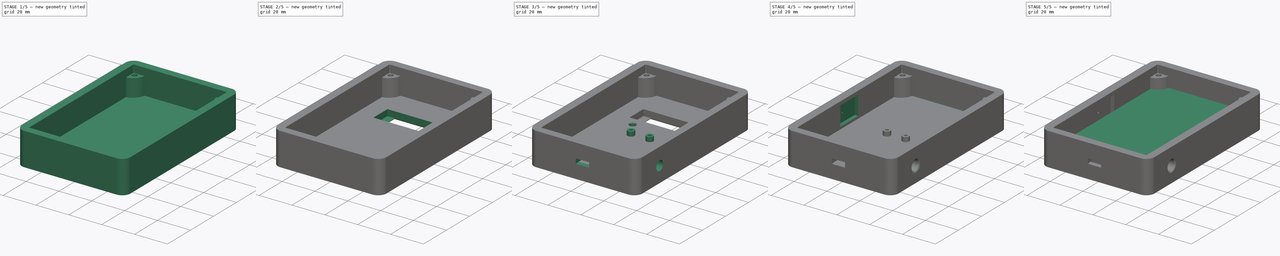
[diagram: build sequence overview — one tinted view per stage of 5, left to right]
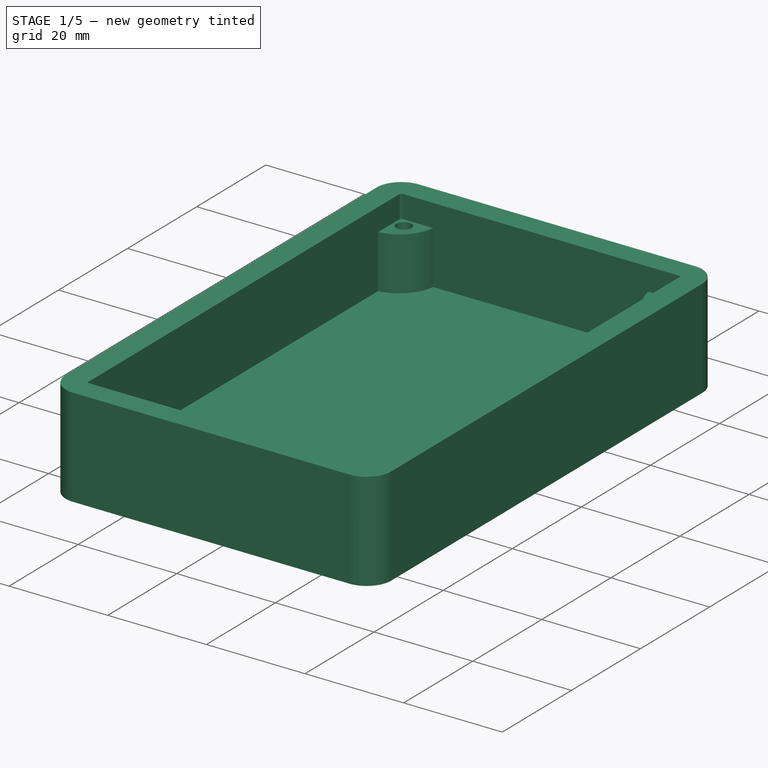
[diagram: stage 1 of 5 — iso view after this stage's code; geometry added in this stage tinted green]
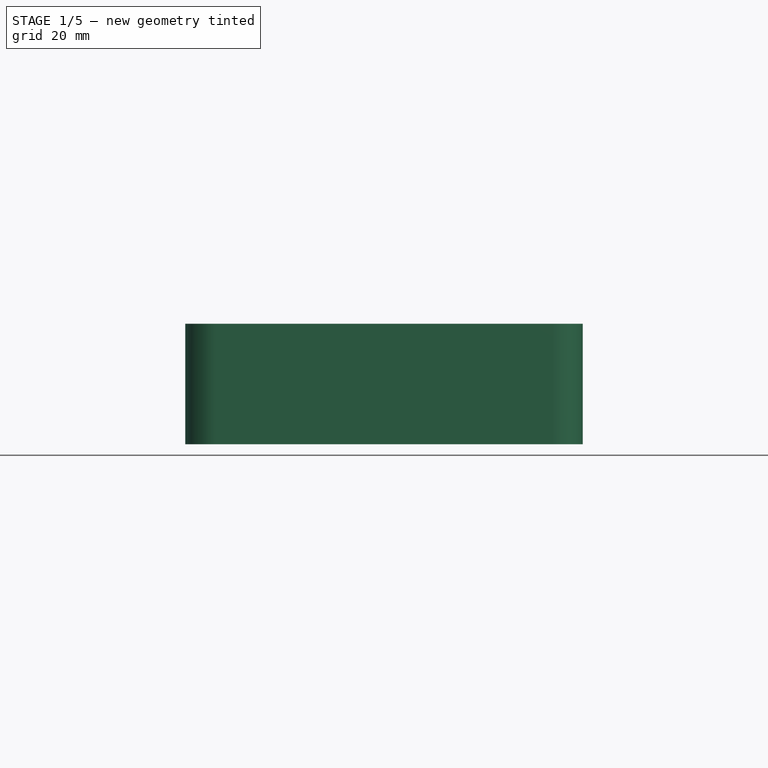
[diagram: stage 1 of 5 — front view after this stage's code; geometry added in this stage tinted green]
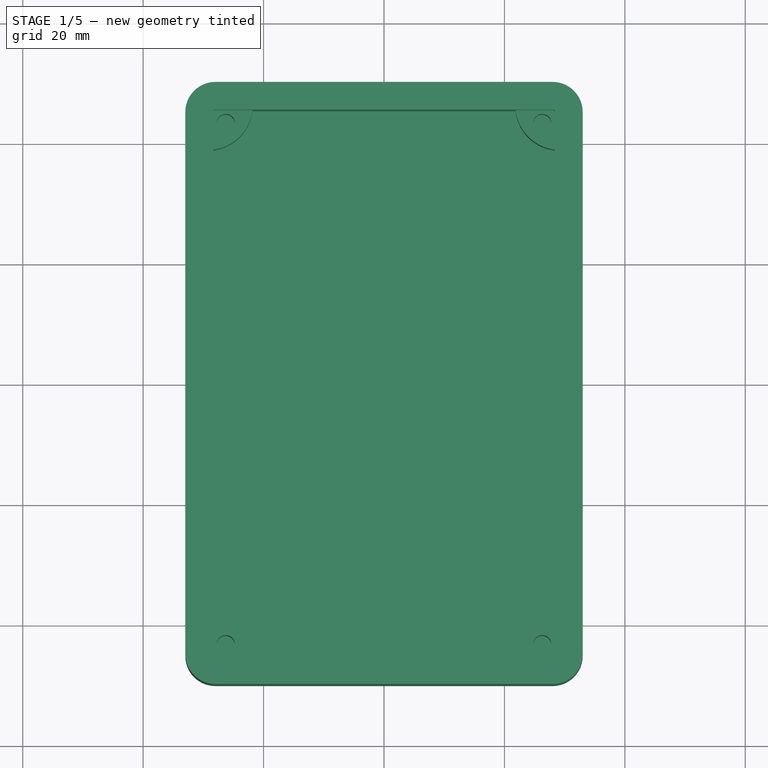
[diagram: stage 1 of 5 — top view after this stage's code; geometry added in this stage tinted green]
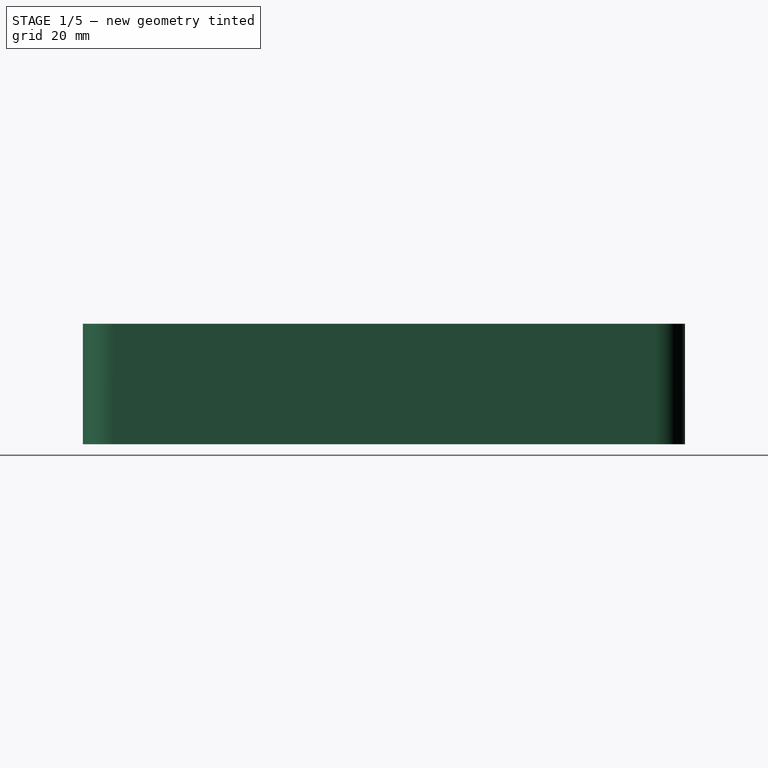
[diagram: stage 1 of 5 — right view after this stage's code; geometry added in this stage tinted green]
FCSTD DOCUMENT  (FreeCAD 0.21R33771 (Git))
Label: Project_Box_OLEDBOXFACE_91_PF_TempSensor
License: All rights reserved
LicenseURL: http://en.wikipedia.org/wiki/All_rights_reserved
objects: Sketcher::SketchObject×16, PartDesign::Pocket×12, PartDesign::Pad×5, PartDesign::Mirrored×4, PartDesign::MultiTransform×2, PartDesign::Chamfer×2, PartDesign::Body×2, App::Part×2, Spreadsheet::Sheet×1, Part::Part2DObjectPython×1, PartDesign::Fillet×1
note: 65 computed .brp shape members not serialized (recipe doc carries the construction recipe); baked Part::Feature solids carry a one-line shape summary decoded from their .brp

FEATURE [Sketcher::SketchObject] Sketch
  FullyConstrained = true
  MapMode = 5
  Support = -> [XY_Plane002]
  expr: Constraints[16] = <<params>>.box_y
  expr: Constraints[17] = <<params>>.radius_out
  expr: Constraints[18] = <<params>>.box_x
  sketch-geometry (8):
    g0: LineSegment StartX=-28 StartY=50 StartZ=0 EndX=28 EndY=50 EndZ=0
    g1: LineSegment StartX=33 StartY=45 StartZ=0 EndX=33 EndY=-45 EndZ=0
    g2: LineSegment StartX=28 StartY=-50 StartZ=0 EndX=-28 EndY=-50 EndZ=0
    g3: LineSegment StartX=-33 StartY=-45 StartZ=0 EndX=-33 EndY=45 EndZ=0
    g4: ArcOfCircle CenterX=-28 CenterY=45 CenterZ=0 NormalX=0 NormalY=0 NormalZ=1 AngleXU=0 Radius=5 StartAngle=1.5708 EndAngle=3.14159
    g5: ArcOfCircle CenterX=28 CenterY=45 CenterZ=0 NormalX=0 NormalY=0 NormalZ=1 AngleXU=0 Radius=5 StartAngle=0 EndAngle=1.5708
    g6: ArcOfCircle CenterX=28 CenterY=-45 CenterZ=0 NormalX=0 NormalY=0 NormalZ=1 AngleXU=0 Radius=5 StartAngle=4.71239 EndAngle=6.28319
    g7: ArcOfCircle CenterX=-28 CenterY=-45 CenterZ=0 NormalX=0 NormalY=0 NormalZ=1 AngleXU=0 Radius=5 StartAngle=3.14159 EndAngle=4.71239
  constraints (19):
    c: Horizontal(g0)
    c: Horizontal(g2)
    c: Vertical(g1)
    c: Vertical(g3)
    c: Tangent(g0,g4) = 1.5708
    c: Tangent(g3,g4) = 1.5708
    c: Tangent(g0,g5) = 1.5708
    c: Tangent(g1,g5) = 1.5708
    c: Tangent(g1,g6) = 1.5708
    c: Tangent(g2,g6) = 1.5708
    c: Tangent(g2,g7) = 1.5708
    c: Tangent(g3,g7) = 1.5708
    c: Symmetric(g4,g6,g-1)
    c: Equal(g4,g5)
    c: Equal(g5,g6)
    c: Equal(g6,g7)
    c: DistanceY(g2,g0) = 100
    c: Radius(g5) = 5
    c: DistanceX(g3,g1) = 66
FEATURE [Spreadsheet::Sheet] Spreadsheet  label="params"
  cells = A2='box_x; B2(box_x)=66; A3='box_y; B3(box_y)=100; A4='box_z; B4(box_z)=20; A5='box_wall_t; B5(box_wall_t)=4.6; A6='box_i_x; B6(box_i_x)==B2 - B5 * 2; C6='Calculated; A7='box_i_y; B7(box_i_y)==B3 - B5 * 2; C7='Calculated; A8='radius_out; B8(radius_out)=5; A9='radius_in; B9(radius_in)==B8 - B5; C9='Calculated; A10='hole_d; B10(hole_d)=3; A11='lug_z; B11(lug_z)==B4 - B5 * 2; A12='lug_r; B12(lug_r)==B10 * 2.5; A13='corner_x; B13(corner_x)==B6 / 2; A14='corner_y; B14(corner_y)==B7 / 2; A15='clearance; B15(clearance)=0.2; A16='lug_clearance; B16(lug_clearance)=1; A18='oled_x; B18(oled_x)=38; A19='oled_y; B19(oled_y)=12; A20='oled_z; B20(oled_z)=3.8; A21='oled_d_x; B21(oled_d_x)=27; A22='oled_d_y; B22(oled_d_y)=12; A23='oled_offset; B23(oled_offset)=1; A25='led_d; B25(led_d)=3; A26='led_l; B26(led_l)=4.3; A27='led_lip_d; B27(led_lip_d)=3.85; A28='led_lip_l; B28(led_lip_l)=1; A29='led_oled_clearance; B29(led_oled_clearance)=9; A31='pi_post_hole_d; B31(pi_post_hole_d)=2.1; A32='pi_post_d; B32(pi_post_d)==B31 * 2; C32='Calculated; A33='pi_post_z; B33(pi_post_z)=2.75; A34='pi_post_screw_d; B34(pi_post_screw_d)=2; A35='pi_post_x; B35(pi_post_x)=11.4; A36='pi_post_y; B36(pi_post_y)==B39 - 2; C36='Calculated; A37='pi_x; B37(pi_x)=21; A38='pi_pin_x; B38(pi_pin_x)=17.78; A39='pi_y; B39(pi_y)=51; A40='pi_z; B40(pi_z)=1; A41='pi_body_clearance; B41(pi_body_clearance)=0.2; A42='pi_usb_x; B42(pi_usb_x)=8.1; A43='pi_usb_y; B43(pi_usb_y)=3; A44='pi_usb_z; B44(pi_usb_z)=6; A45='pi_usb_lip_z; B45(pi_usb_lip_z)=1.3; A47='sense_cable_d; B47(sense_cable_d)=5; A48='sense_cable_x; B48(sense_cable_x)=20; A50='touch_x; B50(touch_x)=14.5; A51='touch_y; B51(touch_y)=10.7; A52='touch_z; B52(touch_z)=2.15; A53='touch_clearance; B53(touch_clearance)=1; A55='oled_clearance; B55(oled_clearance)=0.2; A56='led_clearance; B56(led_clearance)=0.5; A57='cable_clearance; B57(cable_clearance)=1; A58='touch_offset; B58(touch_offset)=2.5
FEATURE [PartDesign::Pad] Pad  label="Main Box"
  Direction = (0,0,1)
  Length = 20
  Length2 = 10
  Profile = -> Sketch
  ReferenceAxis = -> Sketch [N_Axis]
  Type = 0
  expr: Length = <<params>>.box_z
FEATURE [Sketcher::SketchObject] Sketch001
  FullyConstrained = true
  MapMode = 5
  Placement = pos=(0,0,20) rot=(0,0,1;0rad)
  Support = -> [Pad]
  expr: Constraints[16] = <<params>>.radius_in
  expr: Constraints[17] = <<params>>.box_i_x
  expr: Constraints[18] = <<params>>.box_i_y
  sketch-geometry (8):
    g0: LineSegment StartX=-28 StartY=45.4 StartZ=0 EndX=28 EndY=45.4 EndZ=0
    g1: LineSegment StartX=28.4 StartY=45 StartZ=0 EndX=28.4 EndY=-45 EndZ=0
    g2: LineSegment StartX=28 StartY=-45.4 StartZ=0 EndX=-28 EndY=-45.4 EndZ=0
    g3: LineSegment StartX=-28.4 StartY=-45 StartZ=0 EndX=-28.4 EndY=45 EndZ=0
    g4: ArcOfCircle CenterX=-28 CenterY=45 CenterZ=0 NormalX=0 NormalY=0 NormalZ=1 AngleXU=0 Radius=0.4 StartAngle=1.5708 EndAngle=3.14159
    g5: ArcOfCircle CenterX=28 CenterY=45 CenterZ=0 NormalX=0 NormalY=0 NormalZ=1 AngleXU=0 Radius=0.4 StartAngle=5.4e-15 EndAngle=1.5708
    g6: ArcOfCircle CenterX=28 CenterY=-45 CenterZ=0 NormalX=0 NormalY=0 NormalZ=1 AngleXU=0 Radius=0.4 StartAngle=4.71239 EndAngle=6.28319
    g7: ArcOfCircle CenterX=-28 CenterY=-45 CenterZ=0 NormalX=0 NormalY=0 NormalZ=1 AngleXU=0 Radius=0.4 StartAngle=3.14159 EndAngle=4.71239
  constraints (19):
    c: Horizontal(g0)
    c: Horizontal(g2)
    c: Vertical(g1)
    c: Vertical(g3)
    c: Tangent(g3,g4) = 1.5708
    c: Tangent(g0,g4) = 1.5708
    c: Tangent(g0,g5) = 1.5708
    c: Tangent(g1,g5) = 1.5708
    c: Tangent(g1,g6) = 1.5708
    c: Tangent(g2,g6) = 1.5708
    c: Tangent(g2,g7) = 1.5708
    c: Tangent(g3,g7) = 1.5708
    c: Symmetric(g4,g6,g-1)
    c: Equal(g4,g5)
    c: Equal(g5,g6)
    c: Equal(g6,g7)
    c: Radius(g5) = 0.4
    c: DistanceX(g3,g1) = 56.8
    c: DistanceY(g2,g0) = 90.8
FEATURE [PartDesign::Pocket] Pocket  label="Box Pocket"
  BaseFeature = -> Pad
  Direction = (0,0,-1)
  Length = 15.4
  Length2 = 5
  Profile = -> Sketch001
  ReferenceAxis = -> Sketch001 [N_Axis]
  Type = 0
  expr: Length = <<params>>.box_z - <<params>>.box_wall_t
FEATURE [PartDesign::Body] Body001  label="LidBody"
  Group = -> [Sketch003,Pad002,Sketch004,Pad003,Sketch005,Pocket001,MultiTransform001,Mirrored002,Mirrored003,Chamfer]
  Origin = -> Origin004
  Tip = -> Chamfer
FEATURE [App::Part] Part001  label="Lid"
  Group = -> [Body001]
  Origin = -> Origin003
FEATURE [PartDesign::Mirrored] Mirrored
  MirrorPlane = -> Sketch002 [V_Axis]
FEATURE [PartDesign::Mirrored] Mirrored001
  MirrorPlane = -> Sketch002 [H_Axis]
FEATURE [PartDesign::Pad] Pad001  label="Lug"
  BaseFeature = -> Pocket
  Direction = (0,0,1)
  Length = 10.8
  Length2 = 10
  Profile = -> Sketch002
  ReferenceAxis = -> Sketch002 [N_Axis]
  Type = 0
  expr: Length = <<params>>.lug_z
FEATURE [PartDesign::MultiTransform] MultiTransform
  BaseFeature = -> Pad001
  Originals = -> [Pad001]
  Transformations = -> [Mirrored,Mirrored001]
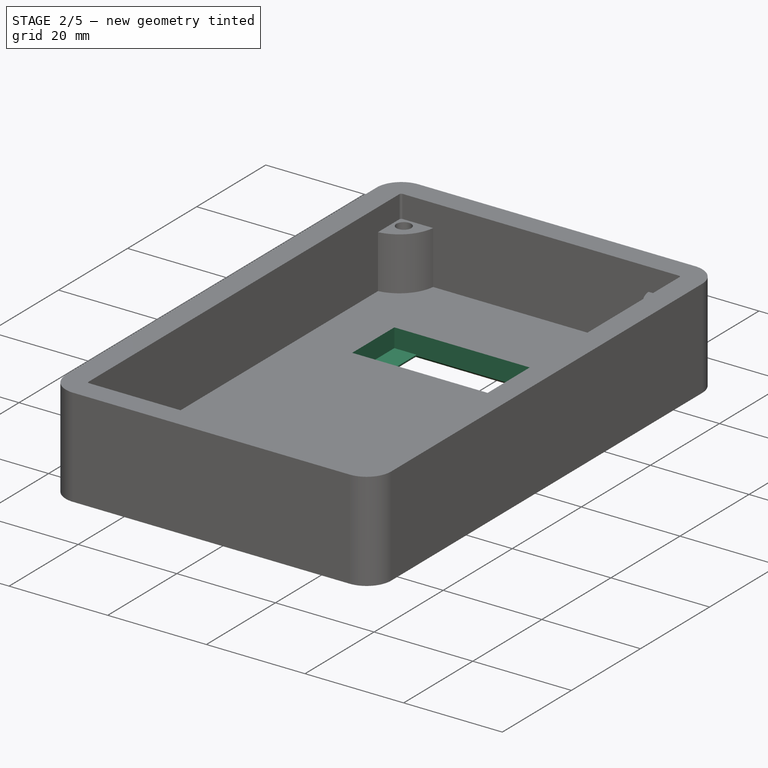
[diagram: stage 2 of 5 — iso view after this stage's code; geometry added in this stage tinted green]
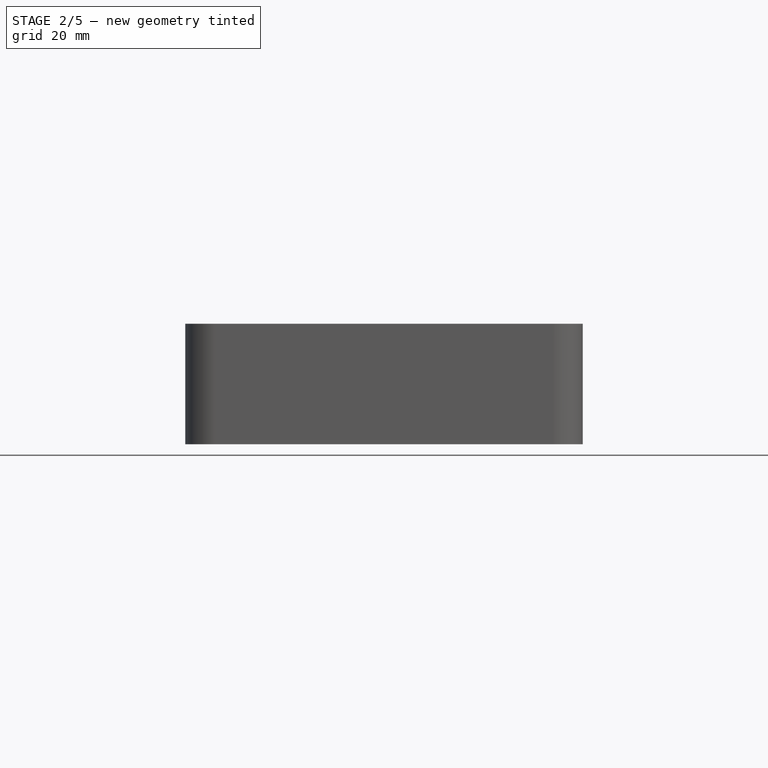
[diagram: stage 2 of 5 — front view after this stage's code; geometry added in this stage tinted green]
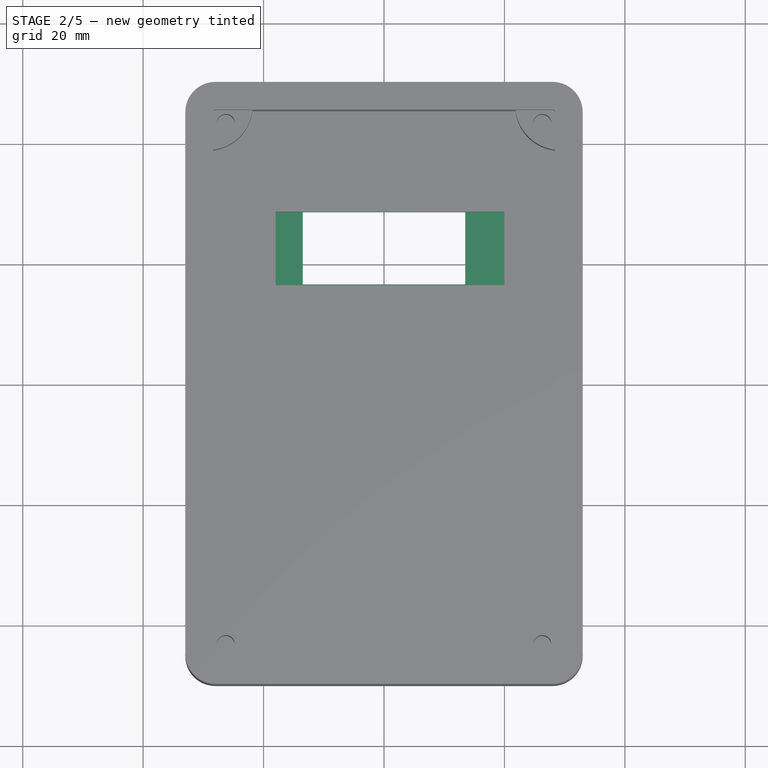
[diagram: stage 2 of 5 — top view after this stage's code; geometry added in this stage tinted green]
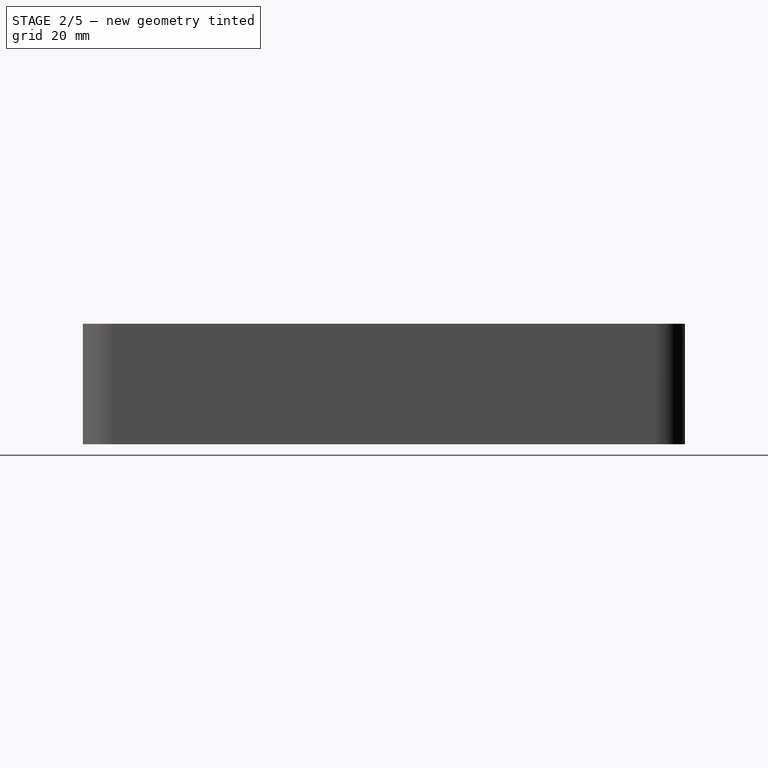
[diagram: stage 2 of 5 — right view after this stage's code; geometry added in this stage tinted green]
FEATURE [Sketcher::SketchObject] Sketch006
  FullyConstrained = true
  MapMode = 5
  Placement = pos=(0,0,4.6) rot=(0,0,1;0rad)
  Support = -> [MultiTransform]
  expr: Constraints[10] = <<params>>.box_i_y / 4 + <<params>>.oled_y / 2
  expr: Constraints[11] = <<params>>.oled_d_x / 2
  expr: Constraints[8] = <<params>>.oled_d_x
  expr: Constraints[9] = <<params>>.oled_d_y
  sketch-geometry (4):
    g0: LineSegment StartX=-13.5 StartY=28.7 StartZ=0 EndX=13.5 EndY=28.7 EndZ=0
    g1: LineSegment StartX=13.5 StartY=28.7 StartZ=0 EndX=13.5 EndY=16.7 EndZ=0
    g2: LineSegment StartX=13.5 StartY=16.7 StartZ=0 EndX=-13.5 EndY=16.7 EndZ=0
    g3: LineSegment StartX=-13.5 StartY=16.7 StartZ=0 EndX=-13.5 EndY=28.7 EndZ=0
  constraints (12):
    c: Coincident(g0,g1)
    c: Coincident(g1,g2)
    c: Coincident(g2,g3)
    c: Coincident(g3,g0)
    c: Horizontal(g0)
    c: Horizontal(g2)
    c: Vertical(g1)
    c: Vertical(g3)
    c: DistanceX(g0,g0) = 27
    c: DistanceY(g2,g0) = 12
    c: DistanceY(g-1,g0) = 28.7
    c: DistanceX(g2,g-1) = 13.5
FEATURE [PartDesign::Pocket] Pocket002  label="OLED Display Pocket"
  BaseFeature = -> MultiTransform
  Direction = (0,0,-1)
  Length = 4.6
  Length2 = 5
  Profile = -> Sketch006
  ReferenceAxis = -> Sketch006 [N_Axis]
  Type = 0
  expr: Length = <<params>>.box_wall_t
FEATURE [Sketcher::SketchObject] Sketch007
  FullyConstrained = true
  MapMode = 5
  Placement = pos=(0,0,4.6) rot=(0,0,1;0rad)
  Support = -> [Pocket002]
  expr: Constraints[10] = <<params>>.box_i_y / 4 + <<params>>.oled_y / 2
  expr: Constraints[11] = <<params>>.oled_x / 2 - <<params>>.oled_offset
  expr: Constraints[8] = <<params>>.oled_y + <<params>>.oled_clearance
  expr: Constraints[9] = <<params>>.oled_x
  sketch-geometry (4):
    g0: LineSegment StartX=-18 StartY=28.7 StartZ=0 EndX=20 EndY=28.7 EndZ=0
    g1: LineSegment StartX=20 StartY=28.7 StartZ=0 EndX=20 EndY=16.5 EndZ=0
    g2: LineSegment StartX=20 StartY=16.5 StartZ=0 EndX=-18 EndY=16.5 EndZ=0
    g3: LineSegment StartX=-18 StartY=16.5 StartZ=0 EndX=-18 EndY=28.7 EndZ=0
  constraints (12):
    c: Coincident(g0,g1)
    c: Coincident(g1,g2)
    c: Coincident(g2,g3)
    c: Coincident(g3,g0)
    c: Horizontal(g0)
    c: Horizontal(g2)
    c: Vertical(g1)
    c: Vertical(g3)
    c: DistanceY(g3,g3) = 12.2
    c: DistanceX(g0,g0) = 38
    c: DistanceY(g-1,g0) = 28.7
    c: DistanceX(g2,g-1) = 18
FEATURE [PartDesign::Pocket] Pocket003  label="OLED Body Pocket"
  BaseFeature = -> Pocket002
  Direction = (0,0,-1)
  Length = 3.8
  Length2 = 5
  Profile = -> Sketch007
  ReferenceAxis = -> Sketch007 [N_Axis]
  Type = 0
  expr: Length = <<params>>.oled_z
FEATURE [PartDesign::Chamfer] Chamfer001  label="OLED Disp Chamfer"
  Angle = 45
  Base = -> Pocket003 [Edge19,Edge18,Edge17,Edge16]
  BaseFeature = -> Pocket003
  ChamferType = 0
  FlipDirection = false
  Size = 0.6
  Size2 = 1
  SupportTransform = false
  UseAllEdges = false
FEATURE [Sketcher::SketchObject] Sketch008
  FullyConstrained = true
  MapMode = 5
  Placement = pos=(0,28.7,0) rot=(1,0,0;1.5708rad)
  Support = -> [Chamfer001]
  expr: Constraints[1] = <<params>>.led_d + <<params>>.led_clearance
  expr: Constraints[2] = <<params>>.oled_d_x / 2 - <<params>>.led_d / 2
  expr: Constraints[3] = <<params>>.oled_d_x / 2 - <<params>>.led_d / 2
  expr: Constraints[4] = <<params>>.box_i_y / 4 - <<params>>.oled_y / 4 - <<params>>.led_oled_clearance
  expr: Constraints[5] = <<params>>.box_i_y / 4 - <<params>>.oled_y / 4 - <<params>>.led_oled_clearance
  sketch-geometry (2):
    g0: Circle CenterX=-12 CenterY=10.7 CenterZ=0 NormalX=0 NormalY=0 NormalZ=1 AngleXU=0 Radius=1.75
    g1: Circle CenterX=12 CenterY=10.7 CenterZ=0 NormalX=0 NormalY=0 NormalZ=1 AngleXU=0 Radius=1.75
  constraints (6):
    c: Equal(g0,g1)
    c: Diameter(g0) = 3.5
    c: DistanceX(g0,g-1) = 12
    c: DistanceX(g-1,g1) = 12
    c: DistanceY(g-1,g0) = 10.7
    c: DistanceY(g-1,g1) = 10.7
FEATURE [PartDesign::Pocket] Pocket004  label="LED Pockets"
  BaseFeature = -> Chamfer001
  Direction = (0,1,-2e-16)
  Length = 4.6
  Length2 = 5
  Profile = -> Sketch008
  ReferenceAxis = -> Sketch008 [N_Axis]
  Type = 0
  expr: Length = <<params>>.box_wall_t
FEATURE [Sketcher::SketchObject] Sketch009
  FullyConstrained = true
  MapMode = 5
  Placement = pos=(0,16.7,0) rot=(0,0.707107,0.707107;3.14159rad)
  Support = -> [Pocket004]
  expr: Constraints[1] = <<params>>.led_lip_d + <<params>>.led_clearance
  expr: Constraints[2] = <<params>>.box_i_y / 4 - <<params>>.oled_y / 4 - <<params>>.led_oled_clearance
  expr: Constraints[3] = <<params>>.box_i_y / 4 - <<params>>.oled_y / 4 - <<params>>.led_oled_clearance
  expr: Constraints[4] = <<params>>.oled_d_x / 2 - <<params>>.led_d / 2
  expr: Constraints[5] = <<params>>.oled_d_x / 2 - <<params>>.led_d / 2
  sketch-geometry (2):
    g0: Circle CenterX=-12 CenterY=10.7 CenterZ=0 NormalX=0 NormalY=0 NormalZ=1 AngleXU=0 Radius=2.175
    g1: Circle CenterX=12 CenterY=10.7 CenterZ=0 NormalX=0 NormalY=0 NormalZ=1 AngleXU=0 Radius=2.175
  constraints (6):
    c: Equal(g0,g1)
    c: Diameter(g0) = 4.35
    c: DistanceY(g-1,g0) = 10.7
    c: DistanceY(g-1,g1) = 10.7
    c: DistanceX(g-1,g1) = 12
    c: DistanceX(g0,g-1) = 12
FEATURE [PartDesign::Pocket] Pocket005  label="LED Lip Pockets"
  BaseFeature = -> Pocket004
  Direction = (0,-1,-2e-16)
  Length = 0.3
  Length2 = 5
  Profile = -> Sketch009
  ReferenceAxis = -> Sketch009 [N_Axis]
  Type = 0
  expr: Length = <<params>>.box_wall_t - <<params>>.led_l
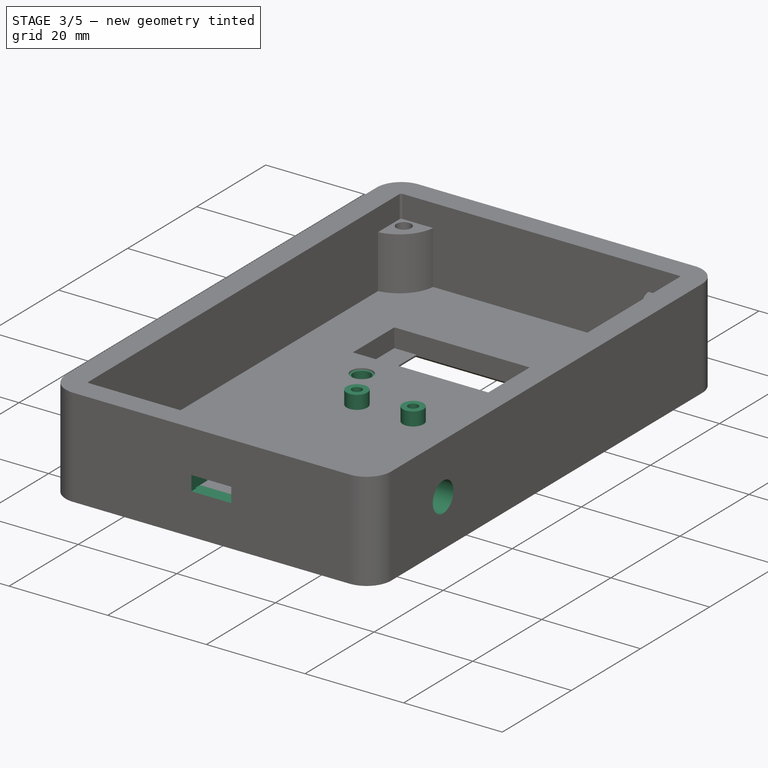
[diagram: stage 3 of 5 — iso view after this stage's code; geometry added in this stage tinted green]
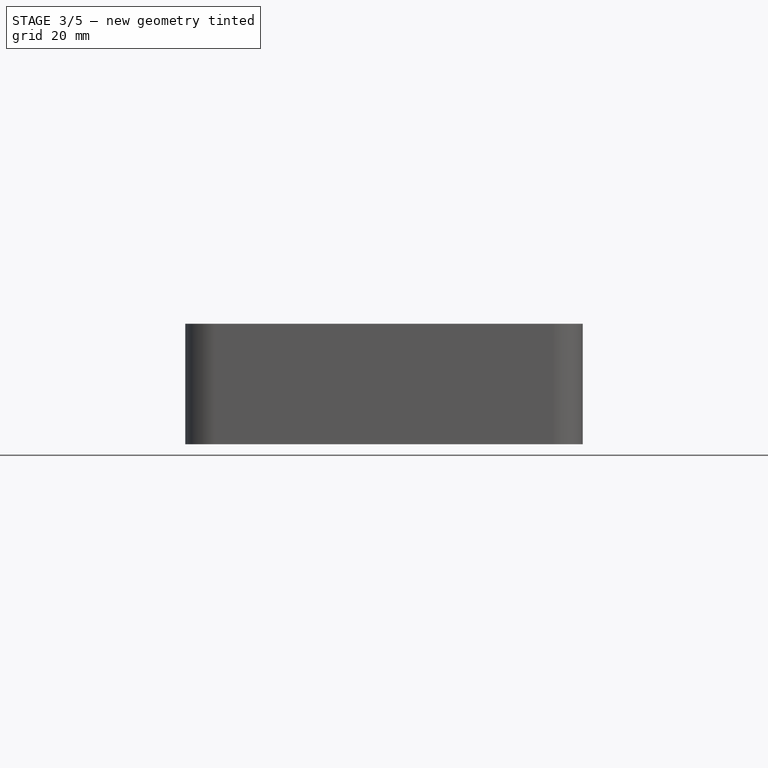
[diagram: stage 3 of 5 — front view after this stage's code; geometry added in this stage tinted green]
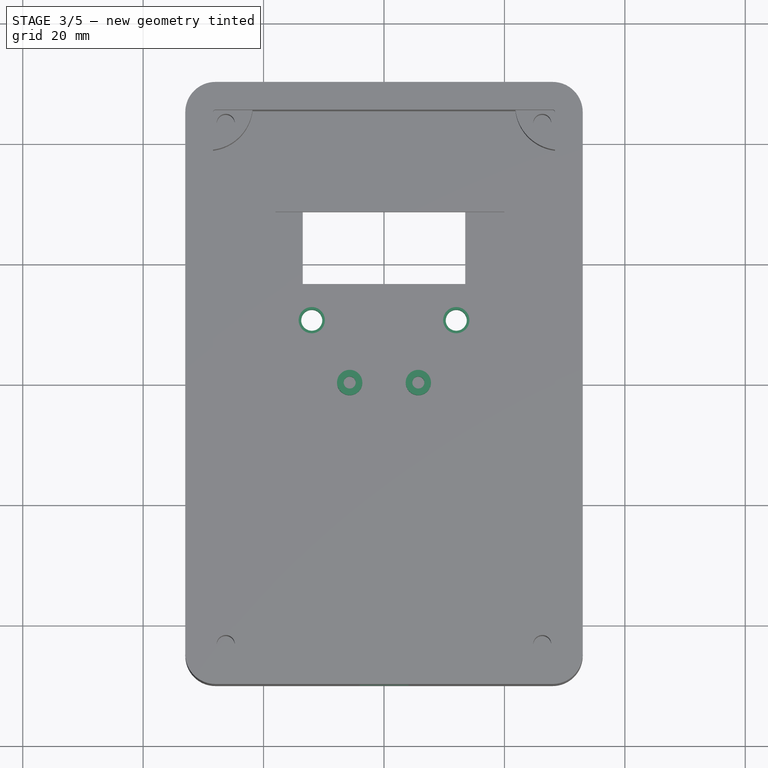
[diagram: stage 3 of 5 — top view after this stage's code; geometry added in this stage tinted green]
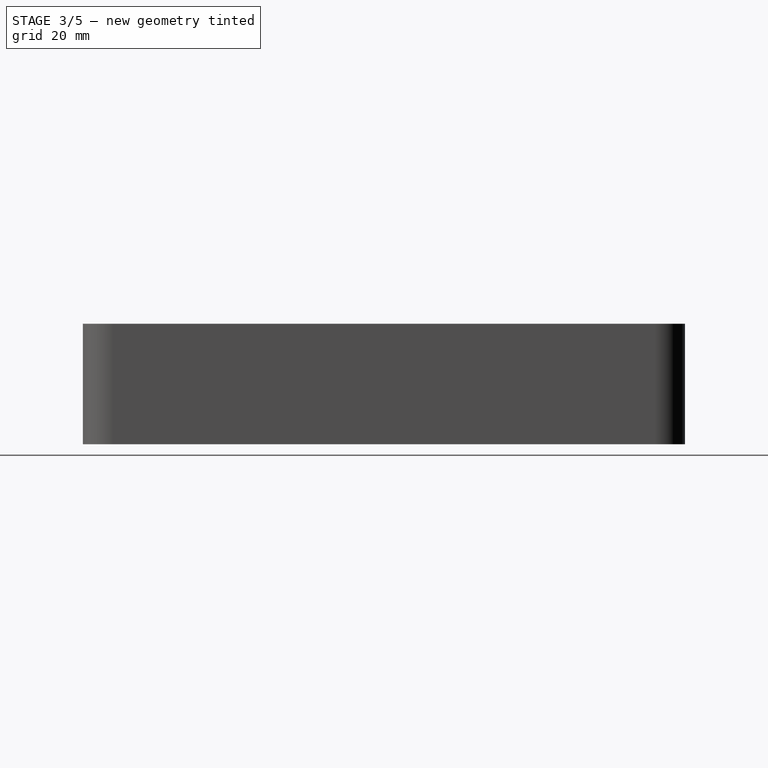
[diagram: stage 3 of 5 — right view after this stage's code; geometry added in this stage tinted green]
FEATURE [Sketcher::SketchObject] Sketch010
  FullyConstrained = true
  MapMode = 5
  Placement = pos=(0,0,4.6) rot=(0,0,1;0rad)
  Support = -> [Pocket005]
  expr: Constraints[2] = <<params>>.pi_post_screw_d
  expr: Constraints[3] = <<params>>.pi_post_screw_d
  expr: Constraints[4] = <<params>>.pi_post_d
  expr: Constraints[5] = <<params>>.pi_post_d
  expr: Constraints[6] = <<params>>.pi_post_x / 2
  expr: Constraints[7] = <<params>>.pi_post_x / 2
  expr: Constraints[8] = <<params>>.box_y / 2 - <<params>>.pi_usb_lip_z - <<params>>.pi_post_y
  expr: Constraints[9] = <<params>>.box_y / 2 - <<params>>.pi_usb_lip_z - <<params>>.pi_post_y
  sketch-geometry (4):
    g0: Circle CenterX=-5.7 CenterY=0.3 CenterZ=0 NormalX=0 NormalY=0 NormalZ=1 AngleXU=0 Radius=2.1
    g1: Circle CenterX=5.7 CenterY=0.3 CenterZ=0 NormalX=0 NormalY=0 NormalZ=1 AngleXU=0 Radius=2.1
    g2: Circle CenterX=5.7 CenterY=0.3 CenterZ=0 NormalX=0 NormalY=0 NormalZ=1 AngleXU=0 Radius=1
    g3: Circle CenterX=-5.7 CenterY=0.3 CenterZ=0 NormalX=0 NormalY=0 NormalZ=1 AngleXU=0 Radius=1
  constraints (10):
    c: Coincident(g0,g3)
    c: Coincident(g1,g2)
    c: Diameter(g2) = 2
    c: Diameter(g3) = 2
    c: Diameter(g1) = 4.2
    c: Diameter(g0) = 4.2
    c: DistanceX(g0,g-1) = 5.7
    c: DistanceX(g-1,g1) = 5.7
    c: DistanceY(g0,g-1) = -0.3
    c: DistanceY(g1,g-1) = -0.3
FEATURE [PartDesign::Pad] Pad004  label="Pi Posts"
  BaseFeature = -> Pocket005
  Direction = (0,0,1)
  Length = 2.75
  Length2 = 10
  Profile = -> Sketch010
  ReferenceAxis = -> Sketch010 [N_Axis]
  Type = 0
  expr: Length = <<params>>.pi_post_z
FEATURE [Sketcher::SketchObject] Sketch011
  FullyConstrained = true
  MapMode = 5
  Placement = pos=(0,-45.4,0) rot=(0,0.707107,0.707107;3.14159rad)
  Support = -> [Pad004]
  expr: Constraints[10] = <<params>>.pi_usb_x / 2
  expr: Constraints[11] = <<params>>.box_wall_t + <<params>>.pi_post_z + <<params>>.pi_z
  expr: Constraints[8] = <<params>>.pi_usb_x
  expr: Constraints[9] = <<params>>.pi_usb_y
  sketch-geometry (4):
    g0: LineSegment StartX=-4.05 StartY=11.35 StartZ=0 EndX=4.05 EndY=11.35 EndZ=0
    g1: LineSegment StartX=4.05 StartY=11.35 StartZ=0 EndX=4.05 EndY=8.35 EndZ=0
    g2: LineSegment StartX=4.05 StartY=8.35 StartZ=0 EndX=-4.05 EndY=8.35 EndZ=0
    g3: LineSegment StartX=-4.05 StartY=8.35 StartZ=0 EndX=-4.05 EndY=11.35 EndZ=0
  constraints (12):
    c: Coincident(g0,g1)
    c: Coincident(g1,g2)
    c: Coincident(g2,g3)
    c: Coincident(g3,g0)
    c: Horizontal(g0)
    c: Horizontal(g2)
    c: Vertical(g1)
    c: Vertical(g3)
    c: DistanceX(g0,g0) = 8.1
    c: DistanceY(g1,g1) = 3
    c: DistanceX(g2,g-1) = 4.05
    c: DistanceY(g-1,g2) = 8.35
FEATURE [PartDesign::Pocket] Pocket006  label="Pi USB Pocket"
  BaseFeature = -> Pad004
  Direction = (0,-1,2e-16)
  Length = 4.6
  Length2 = 5
  Profile = -> Sketch011
  ReferenceAxis = -> Sketch011 [N_Axis]
  Type = 0
  expr: Length = <<params>>.box_wall_t
FEATURE [Sketcher::SketchObject] Sketch012
  FullyConstrained = true
  MapMode = 5
  Placement = pos=(0,-45.4,0) rot=(0,0.707107,0.707107;3.14159rad)
  Support = -> [Pocket006]
  expr: Constraints[10] = <<params>>.pi_x / 2 + <<params>>.pi_body_clearance
  expr: Constraints[11] = <<params>>.box_wall_t + <<params>>.pi_post_z
  expr: Constraints[8] = <<params>>.pi_x + <<params>>.pi_body_clearance
  expr: Constraints[9] = <<params>>.pi_z + <<params>>.pi_body_clearance
  sketch-geometry (4):
    g0: LineSegment StartX=-10.7 StartY=8.55 StartZ=0 EndX=10.5 EndY=8.55 EndZ=0
    g1: LineSegment StartX=10.5 StartY=8.55 StartZ=0 EndX=10.5 EndY=7.35 EndZ=0
    g2: LineSegment StartX=10.5 StartY=7.35 StartZ=0 EndX=-10.7 EndY=7.35 EndZ=0
    g3: LineSegment StartX=-10.7 StartY=7.35 StartZ=0 EndX=-10.7 EndY=8.55 EndZ=0
  constraints (12):
    c: Coincident(g0,g1)
    c: Coincident(g1,g2)
    c: Coincident(g2,g3)
    c: Coincident(g3,g0)
    c: Horizontal(g0)
    c: Horizontal(g2)
    c: Vertical(g1)
    c: Vertical(g3)
    c: DistanceX(g0,g0) = 21.2
    c: DistanceY(g3,g3) = 1.2
    c: DistanceX(g2,g-1) = 10.7
    c: DistanceY(g-1,g2) = 7.35
FEATURE [PartDesign::Pocket] Pocket007  label="Pi Body Pocket"
  BaseFeature = -> Pocket006
  Direction = (0,-1,2e-16)
  Length = 3.3
  Length2 = 5
  Profile = -> Sketch012
  ReferenceAxis = -> Sketch012 [N_Axis]
  Type = 0
  expr: Length = <<params>>.box_wall_t - <<params>>.pi_usb_lip_z
FEATURE [Sketcher::SketchObject] Sketch013
  FullyConstrained = true
  MapMode = 5
  Placement = pos=(33,0,0) rot=(0.57735,0.57735,0.57735;2.0944rad)
  Support = -> [Pocket007]
  expr: Constraints[0] = <<params>>.box_z / 4 + <<params>>.box_wall_t
  expr: Constraints[1] = <<params>>.box_y / 2 - <<params>>.sense_cable_x
  expr: Constraints[2] = <<params>>.sense_cable_d + <<params>>.cable_clearance
  sketch-geometry (1):
    g0: Circle CenterX=-30 CenterY=9.6 CenterZ=0 NormalX=0 NormalY=0 NormalZ=1 AngleXU=0 Radius=3
  constraints (3):
    c: DistanceY(g-1,g0) = 9.6
    c: DistanceX(g0,g-1) = 30
    c: Diameter(g0) = 6
FEATURE [PartDesign::Pocket] Pocket008  label="Temp Sensor Cable"
  BaseFeature = -> Pocket007
  Direction = (-1,0,0)
  Length = 4.6
  Length2 = 5
  Profile = -> Sketch013
  ReferenceAxis = -> Sketch013 [N_Axis]
  Type = 0
  expr: Length = <<params>>.box_wall_t
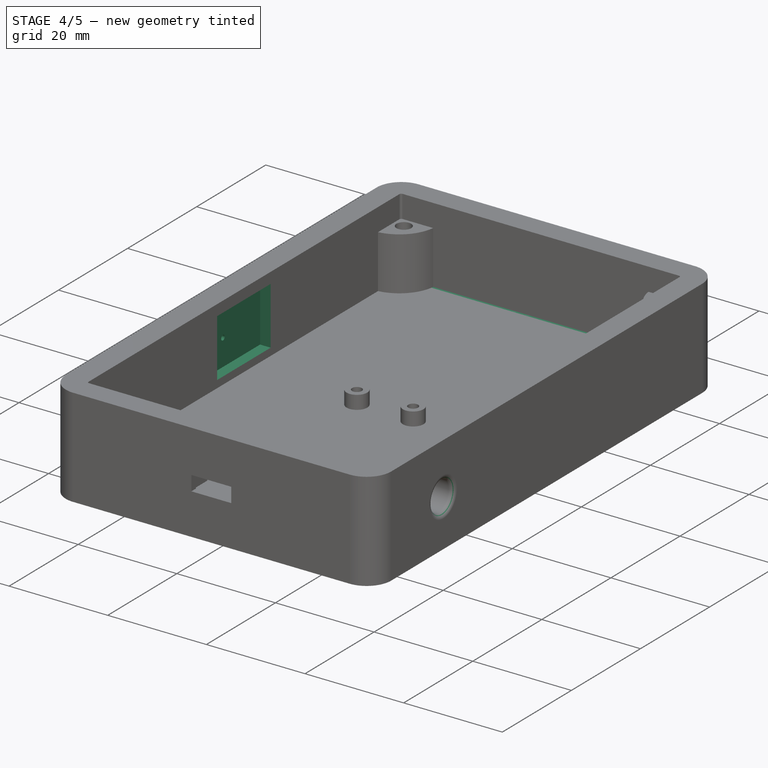
[diagram: stage 4 of 5 — iso view after this stage's code; geometry added in this stage tinted green]
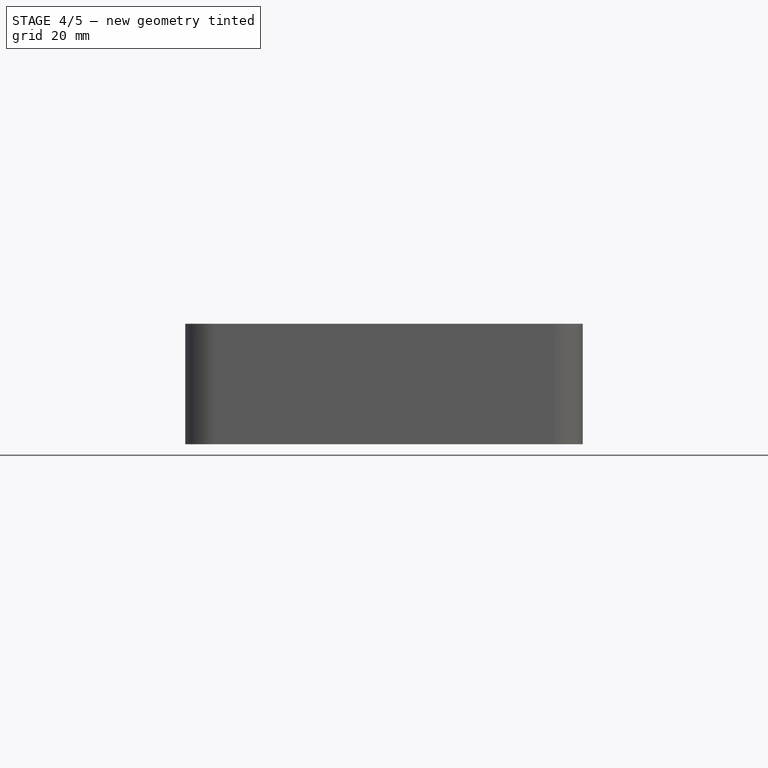
[diagram: stage 4 of 5 — front view after this stage's code; geometry added in this stage tinted green]
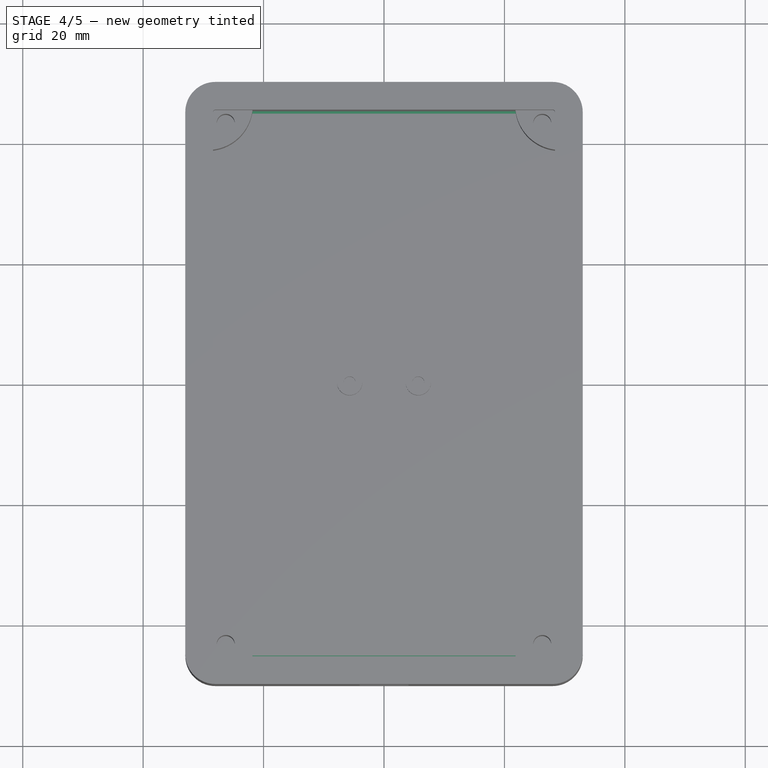
[diagram: stage 4 of 5 — top view after this stage's code; geometry added in this stage tinted green]
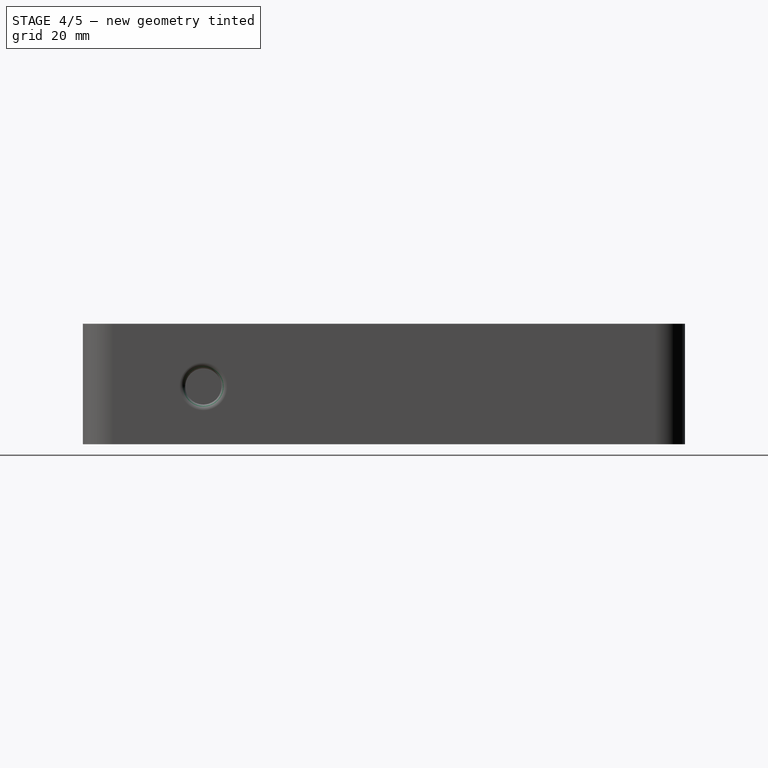
[diagram: stage 4 of 5 — right view after this stage's code; geometry added in this stage tinted green]
FEATURE [Sketcher::SketchObject] Sketch002
  FullyConstrained = true
  MapMode = 5
  Placement = pos=(0,0,4.6) rot=(0,0,1;0rad)
  Support = -> [Pocket]
  expr: Constraints[10] = <<params>>.box_y / 2 - <<params>>.box_wall_t / 2
  expr: Constraints[11] = <<params>>.box_x / 2 - <<params>>.box_wall_t / 2
  expr: Constraints[4] = <<params>>.hole_d * 2.5
  expr: Constraints[5] = <<params>>.hole_d
  expr: Constraints[6] = <<params>>.hole_d
  expr: Constraints[7] = <<params>>.hole_d
  expr: Constraints[8] = <<params>>.box_i_x / 2 - <<params>>.radius_in + <<params>>.radius_in * cos(45) + <<params>>.lug_clearance
  expr: Constraints[9] = <<params>>.box_i_y / 2 - <<params>>.radius_in + <<params>>.radius_in * sin(45) + <<params>>.lug_clearance
  sketch-geometry (4):
    g0: LineSegment StartX=-29.2828 StartY=46.2828 StartZ=0 EndX=-30.7 EndY=38.9179 EndZ=0
    g1: LineSegment StartX=-29.2828 StartY=46.2828 StartZ=0 EndX=-21.9179 EndY=47.7 EndZ=0
    g2: ArcOfCircle CenterX=-29.2828 CenterY=46.2828 CenterZ=0 NormalX=0 NormalY=0 NormalZ=1 AngleXU=0 Radius=7.5 StartAngle=4.52229 EndAngle=6.47328
    g3: Circle CenterX=-26.2828 CenterY=43.2828 CenterZ=0 NormalX=0 NormalY=0 NormalZ=1 AngleXU=0 Radius=1.5
  constraints (12):
    c: Coincident(g1,g0)
    c: Coincident(g2,g0)
    c: Coincident(g2,g1)
    c: Coincident(g2,g0)
    c: Radius(g2) = 7.5
    c: Diameter(g3) = 3
    c: DistanceX(g0,g3) = 3
    c: DistanceY(g3,g0) = 3
    c: DistanceX(g0,g-1) = 29.2828
    c: DistanceY(g-1,g0) = 46.2828
    c: DistanceY(g-1,g1) = 47.7
    c: DistanceX(g0,g-1) = 30.7
FEATURE [Sketcher::SketchObject] Sketch003
  FullyConstrained = true
  MapMode = 5
  Support = -> [XY_Plane004]
  expr: Constraints[15] = <<params>>.box_y
  expr: Constraints[16] = <<params>>.box_x
  expr: Constraints[17] = <<params>>.radius_out
  sketch-geometry (8):
    g0: LineSegment StartX=-28 StartY=50 StartZ=0 EndX=28 EndY=50 EndZ=0
    g1: LineSegment StartX=33 StartY=45 StartZ=0 EndX=33 EndY=-45 EndZ=0
    g2: LineSegment StartX=28 StartY=-50 StartZ=0 EndX=-28 EndY=-50 EndZ=0
    g3: LineSegment StartX=-33 StartY=-45 StartZ=0 EndX=-33 EndY=45 EndZ=0
    g4: ArcOfCircle CenterX=28 CenterY=45 CenterZ=0 NormalX=0 NormalY=0 NormalZ=1 AngleXU=0 Radius=5 StartAngle=0 EndAngle=1.5708
    g5: ArcOfCircle CenterX=28 CenterY=-45 CenterZ=0 NormalX=0 NormalY=0 NormalZ=1 AngleXU=0 Radius=5 StartAngle=4.71239 EndAngle=6.28319
    g6: ArcOfCircle CenterX=-28 CenterY=-45 CenterZ=0 NormalX=0 NormalY=0 NormalZ=1 AngleXU=0 Radius=5 StartAngle=3.14159 EndAngle=4.71239
    g7: ArcOfCircle CenterX=-28 CenterY=45 CenterZ=0 NormalX=0 NormalY=0 NormalZ=1 AngleXU=0 Radius=5 StartAngle=1.5708 EndAngle=3.14159
  constraints (19):
    c: Horizontal(g0)
    c: Horizontal(g2)
    c: Vertical(g1)
    c: Vertical(g3)
    c: Tangent(g0,g4) = 1.5708
    c: Tangent(g1,g4) = 1.5708
    c: Tangent(g1,g5) = 1.5708
    c: Tangent(g2,g5) = 1.5708
    c: Tangent(g2,g6) = 1.5708
    c: Tangent(g3,g6) = 1.5708
    c: Tangent(g0,g7) = 1.5708
    c: Tangent(g3,g7) = 1.5708
    c: Equal(g7,g4)
    c: Equal(g4,g5)
    c: Equal(g5,g6)
    c: DistanceY(g2,g0) = 100
    c: DistanceX(g3,g1) = 66
    c: Radius(g4) = 5
    c: Symmetric(g5,g7,g-1)
FEATURE [PartDesign::Pad] Pad002
  Direction = (0,0,1)
  Length = 4.6
  Length2 = 10
  Profile = -> Sketch003
  ReferenceAxis = -> Sketch003 [N_Axis]
  Type = 0
  expr: Length = <<params>>.box_wall_t
FEATURE [Part::Part2DObjectPython] ShapeString  # Draft 2D object (typed FeaturePython)
  FontFile = <path>
  MakeFace = true
  Placement = pos=(24.945,-20.3239,0) rot=(0,1,0;3.14159rad)
  Size = 7.7
  String = Temp Sentry
  Tracking = 0
FEATURE [PartDesign::Fillet] Fillet  label="Temp Sensor Cable Filet"
  Base = -> Pocket008 [Edge35]
  BaseFeature = -> Pocket008
  Radius = 1
  SupportTransform = false
  UseAllEdges = false
FEATURE [PartDesign::Pocket] Pocket009  label="Temp Sentry"
  BaseFeature = -> Fillet
  Direction = (0,0,1)
  Length = 0.5
  Length2 = 5
  Profile = -> ShapeString
  ReferenceAxis = -> ShapeString [N_Axis]
  Type = 0
FEATURE [Sketcher::SketchObject] Sketch014
  FullyConstrained = true
  MapMode = 5
  Placement = pos=(-28.4,0,0) rot=(0.57735,0.57735,0.57735;2.0944rad)
  Support = -> [Pocket009]
  expr: Constraints[0] = <<params>>.box_wall_t + <<params>>.touch_clearance + <<params>>.touch_y / 2 + <<params>>.touch_clearance / 2
  expr: Constraints[2] = <<params>>.touch_offset + <<params>>.touch_clearance / 2
  sketch-geometry (1):
    g0: Circle CenterX=-3 CenterY=11.45 CenterZ=0 NormalX=0 NormalY=0 NormalZ=1 AngleXU=0 Radius=0.5
  constraints (3):
    c: DistanceY(g-1,g0) = 11.45
    c: Diameter(g0) = 1
    c: DistanceX(g0,g-1) = 3
FEATURE [PartDesign::Pocket] Pocket010  label="Touch Hole"
  BaseFeature = -> Pocket009
  Direction = (-1,0,0)
  Length = 4.6
  Length2 = 5
  Profile = -> Sketch014
  ReferenceAxis = -> Sketch014 [N_Axis]
  Type = 0
  expr: Length = <<params>>.box_wall_t
FEATURE [Sketcher::SketchObject] Sketch015
  FullyConstrained = true
  MapMode = 5
  Placement = pos=(-28.4,0,0) rot=(0.57735,0.57735,0.57735;2.0944rad)
  Support = -> [Pocket010]
  expr: Constraints[10] = <<params>>.touch_x / 2 + <<params>>.touch_clearance / 2
  expr: Constraints[11] = <<params>>.box_wall_t + <<params>>.touch_clearance + <<params>>.touch_clearance / 2
  expr: Constraints[8] = <<params>>.touch_x + <<params>>.touch_clearance
  expr: Constraints[9] = <<params>>.touch_y + <<params>>.touch_clearance
  sketch-geometry (4):
    g0: LineSegment StartX=-7.75 StartY=17.8 StartZ=0 EndX=7.75 EndY=17.8 EndZ=0
    g1: LineSegment StartX=7.75 StartY=17.8 StartZ=0 EndX=7.75 EndY=6.1 EndZ=0
    g2: LineSegment StartX=7.75 StartY=6.1 StartZ=0 EndX=-7.75 EndY=6.1 EndZ=0
    g3: LineSegment StartX=-7.75 StartY=6.1 StartZ=0 EndX=-7.75 EndY=17.8 EndZ=0
  constraints (12):
    c: Coincident(g0,g1)
    c: Coincident(g1,g2)
    c: Coincident(g2,g3)
    c: Coincident(g3,g0)
    c: Horizontal(g0)
    c: Horizontal(g2)
    c: Vertical(g1)
    c: Vertical(g3)
    c: DistanceX(g0,g0) = 15.5
    c: DistanceY(g1,g1) = 11.7
    c: DistanceX(g2,g-1) = 7.75
    c: DistanceY(g-1,g2) = 6.1
FEATURE [PartDesign::Pocket] Pocket011  label="Touch Pocket"
  BaseFeature = -> Pocket010
  Direction = (-1,0,0)
  Length = 2.15
  Length2 = 5
  Profile = -> Sketch015
  ReferenceAxis = -> Sketch015 [N_Axis]
  Type = 0
  expr: Length = <<params>>.touch_z
FEATURE [PartDesign::Body] Body  label="BoxBody"
  Group = -> [Sketch,Pad,Sketch001,Pocket,Sketch002,Pad001,MultiTransform,Mirrored,Mirrored001,Sketch006,Pocket002,Sketch007,Pocket003,Chamfer001,Sketch008,Pocket004,Sketch009,Pocket005,Sketch010,Pad004,Sketch011,Pocket006,Sketch012,Pocket007,Sketch013,Pocket008,Fillet,ShapeString,Pocket009,Sketch014,Pocket010,Sketch015,Pocket011]
  Origin = -> Origin002
  Tip = -> Pocket011
FEATURE [App::Part] Part  label="Box"
  Group = -> [Body]
  Origin = -> Origin
note: 1 file-system path scrubbed to <path> (originals preserved in the JSON sidecar)
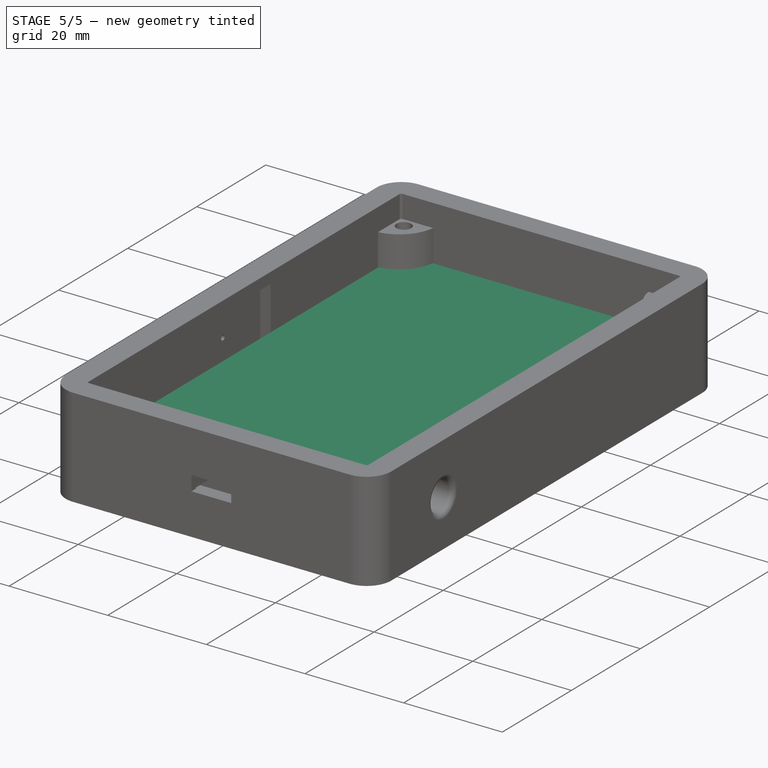
[diagram: stage 5 of 5 — iso view after this stage's code; geometry added in this stage tinted green]
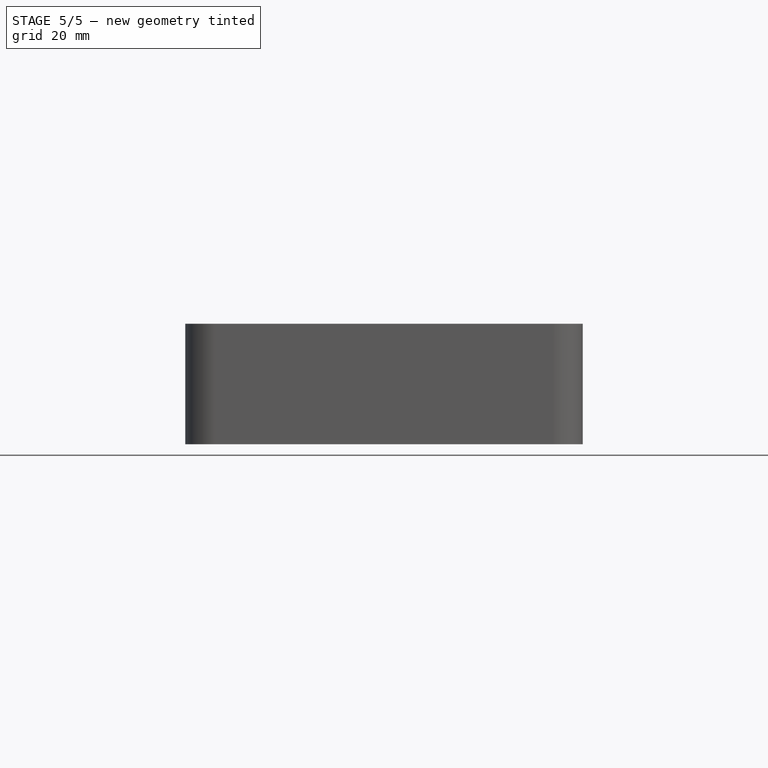
[diagram: stage 5 of 5 — front view after this stage's code; geometry added in this stage tinted green]
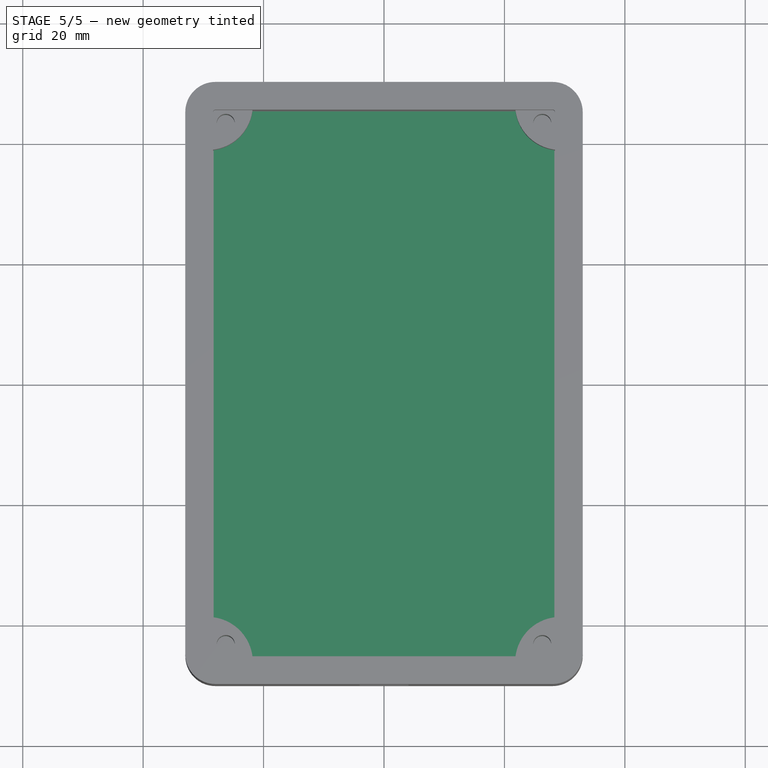
[diagram: stage 5 of 5 — top view after this stage's code; geometry added in this stage tinted green]
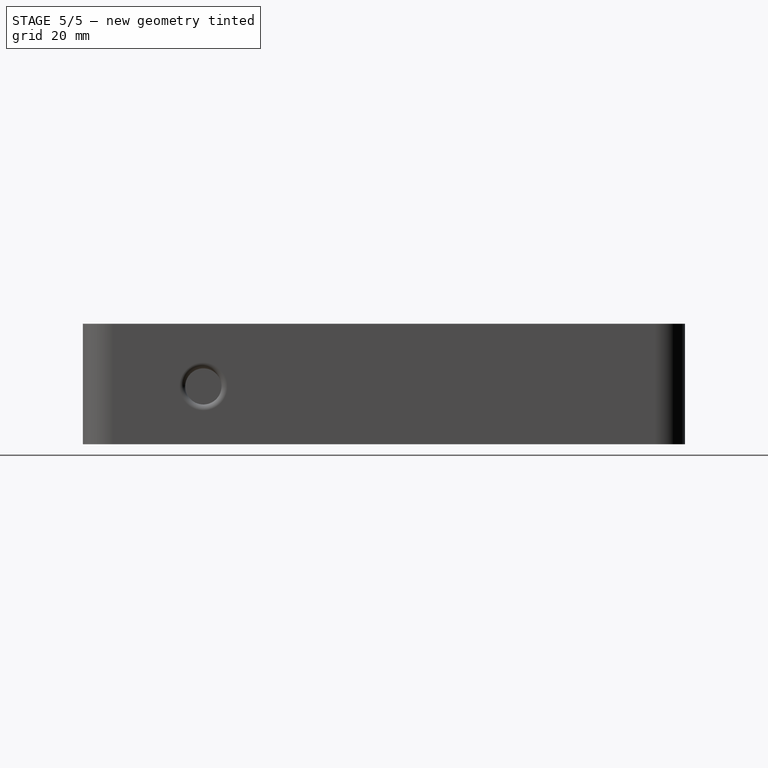
[diagram: stage 5 of 5 — right view after this stage's code; geometry added in this stage tinted green]
FEATURE [Sketcher::SketchObject] Sketch004
  FullyConstrained = true
  MapMode = 5
  Placement = pos=(0,0,4.6) rot=(0,0,1;0rad)
  Support = -> [Pad002]
  expr: Constraints[15] = <<params>>.radius_in
  expr: Constraints[16] = <<params>>.box_i_x - <<params>>.clearance
  expr: Constraints[17] = <<params>>.box_i_y - <<params>>.clearance
  sketch-geometry (8):
    g0: LineSegment StartX=-27.9 StartY=45.3 StartZ=0 EndX=27.9 EndY=45.3 EndZ=0
    g1: LineSegment StartX=28.3 StartY=44.9 StartZ=0 EndX=28.3 EndY=-44.9 EndZ=0
    g2: LineSegment StartX=27.9 StartY=-45.3 StartZ=0 EndX=-27.9 EndY=-45.3 EndZ=0
    g3: LineSegment StartX=-28.3 StartY=-44.9 StartZ=0 EndX=-28.3 EndY=44.9 EndZ=0
    g4: ArcOfCircle CenterX=-27.9 CenterY=44.9 CenterZ=0 NormalX=0 NormalY=0 NormalZ=1 AngleXU=0 Radius=0.4 StartAngle=1.5708 EndAngle=3.14159
    g5: ArcOfCircle CenterX=27.9 CenterY=44.9 CenterZ=0 NormalX=0 NormalY=0 NormalZ=1 AngleXU=0 Radius=0.4 StartAngle=-1.8e-15 EndAngle=1.5708
    g6: ArcOfCircle CenterX=27.9 CenterY=-44.9 CenterZ=0 NormalX=0 NormalY=0 NormalZ=1 AngleXU=0 Radius=0.4 StartAngle=4.71239 EndAngle=6.28319
    g7: ArcOfCircle CenterX=-27.9 CenterY=-44.9 CenterZ=0 NormalX=0 NormalY=0 NormalZ=1 AngleXU=0 Radius=0.4 StartAngle=3.14159 EndAngle=4.71239
  constraints (19):
    c: Horizontal(g0)
    c: Horizontal(g2)
    c: Vertical(g1)
    c: Vertical(g3)
    c: Tangent(g0,g4) = 1.5708
    c: Tangent(g3,g4) = 1.5708
    c: Tangent(g0,g5) = 1.5708
    c: Tangent(g1,g5) = 1.5708
    c: Tangent(g1,g6) = 1.5708
    c: Tangent(g2,g6) = 1.5708
    c: Tangent(g2,g7) = 1.5708
    c: Tangent(g3,g7) = 1.5708
    c: Equal(g4,g5)
    c: Equal(g5,g6)
    c: Equal(g6,g7)
    c: Radius(g5) = 0.4
    c: DistanceX(g3,g1) = 56.6
    c: DistanceY(g2,g0) = 90.6
    c: Symmetric(g5,g7,g-1)
FEATURE [PartDesign::Pad] Pad003
  BaseFeature = -> Pad002
  Direction = (0,0,1)
  Length = 4.4
  Length2 = 10
  Profile = -> Sketch004
  ReferenceAxis = -> Sketch004 [N_Axis]
  Type = 0
  expr: Length = <<params>>.box_wall_t - <<params>>.clearance
FEATURE [Sketcher::SketchObject] Sketch005
  FullyConstrained = true
  MapMode = 5
  Placement = pos=(0,0,9) rot=(0,0,1;0rad)
  Support = -> [Pad003]
  expr: Constraints[0] = <<params>>.hole_d
  expr: Constraints[1] = <<params>>.box_i_y / 2 - <<params>>.radius_in + <<params>>.radius_in * cos(45) + <<params>>.lug_clearance - <<params>>.hole_d
  expr: Constraints[2] = <<params>>.box_i_x / 2 - <<params>>.radius_in + <<params>>.radius_in * cos(45) + <<params>>.lug_clearance - <<params>>.hole_d
  sketch-geometry (1):
    g0: Circle CenterX=-26.2828 CenterY=43.2828 CenterZ=0 NormalX=0 NormalY=0 NormalZ=1 AngleXU=0 Radius=1.5
  constraints (3):
    c: Diameter(g0) = 3
    c: DistanceY(g-1,g0) = 43.2828
    c: DistanceX(g0,g-1) = 26.2828
FEATURE [PartDesign::Pocket] Pocket001
  BaseFeature = -> Pad003
  Direction = (0,0,-1)
  Length = 9.2
  Length2 = 5
  Profile = -> Sketch005
  ReferenceAxis = -> Sketch005 [N_Axis]
  Type = 0
  expr: Length = <<params>>.box_wall_t * 2
FEATURE [PartDesign::Mirrored] Mirrored002
  MirrorPlane = -> Sketch005 [V_Axis]
FEATURE [PartDesign::Mirrored] Mirrored003
  MirrorPlane = -> Sketch005 [H_Axis]
FEATURE [PartDesign::MultiTransform] MultiTransform001
  BaseFeature = -> Pocket001
  Originals = -> [Pocket001]
  Transformations = -> [Mirrored002,Mirrored003]
FEATURE [PartDesign::Chamfer] Chamfer
  Angle = 45
  Base = -> MultiTransform001 [Edge18,Edge16,Edge17,Edge19]
  BaseFeature = -> MultiTransform001
  ChamferType = 0
  FlipDirection = false
  Size = 1
  Size2 = 1
  SupportTransform = false
  UseAllEdges = false
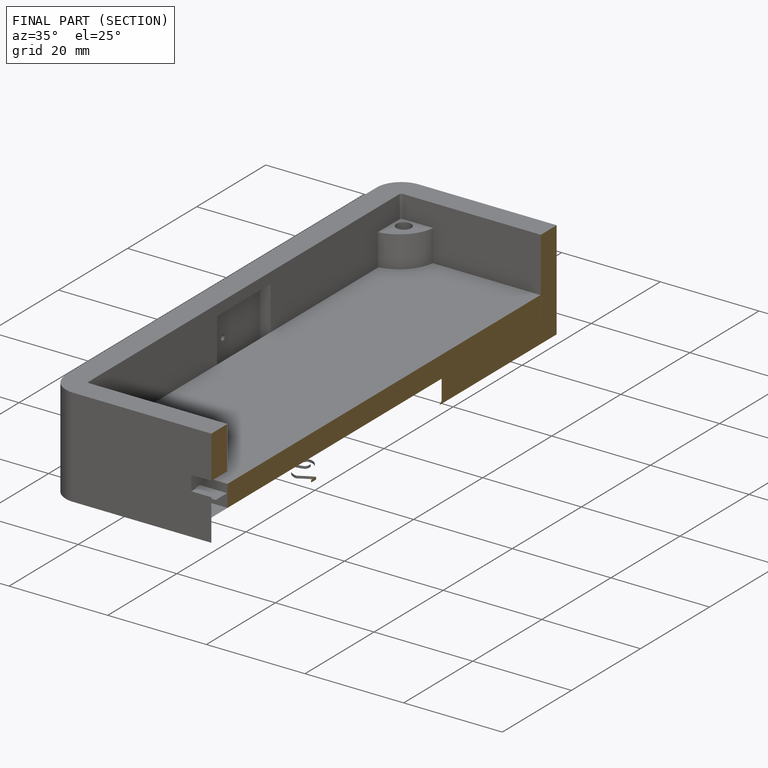
[diagram: finished part — half-section view (interior)]
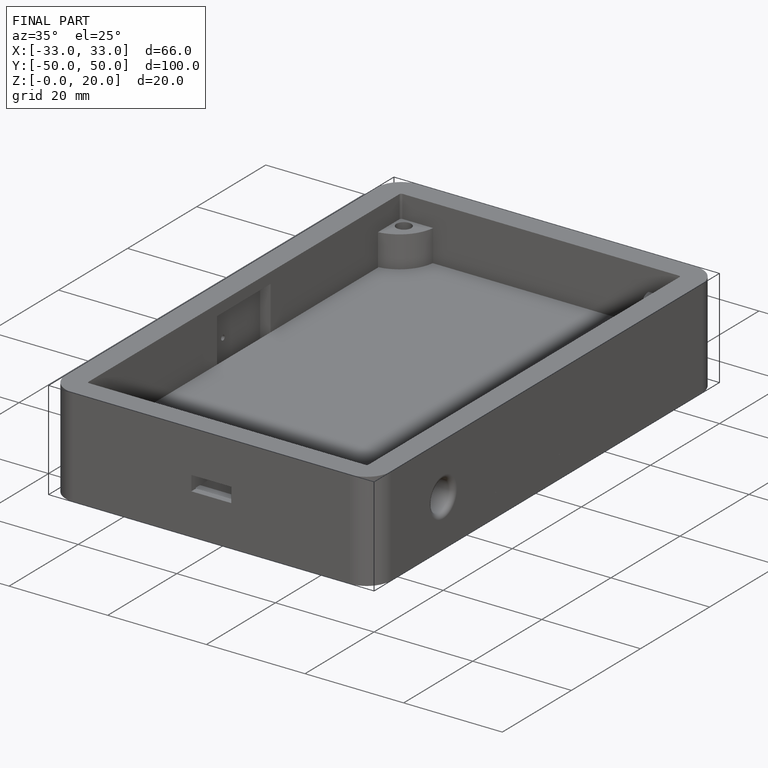
[diagram: finished part — iso view with bounding-box wireframe]
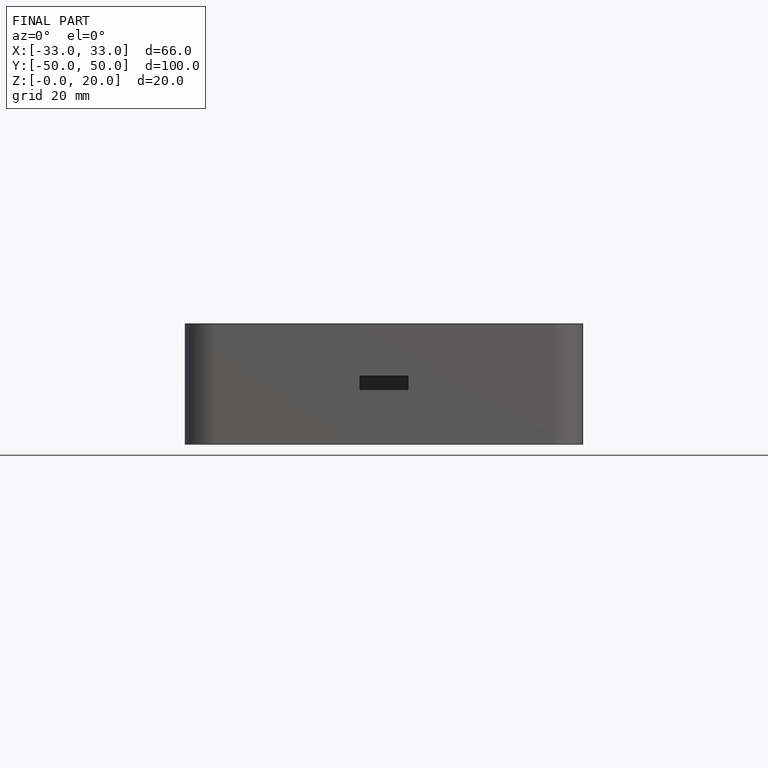
[diagram: finished part — front view with bounding-box wireframe]
